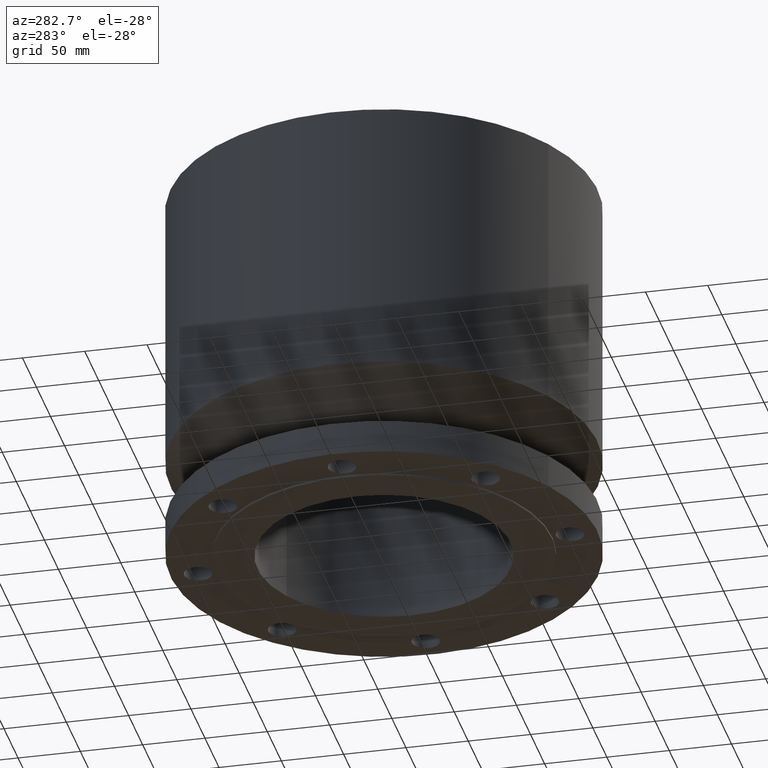
[diagram: clean part render]
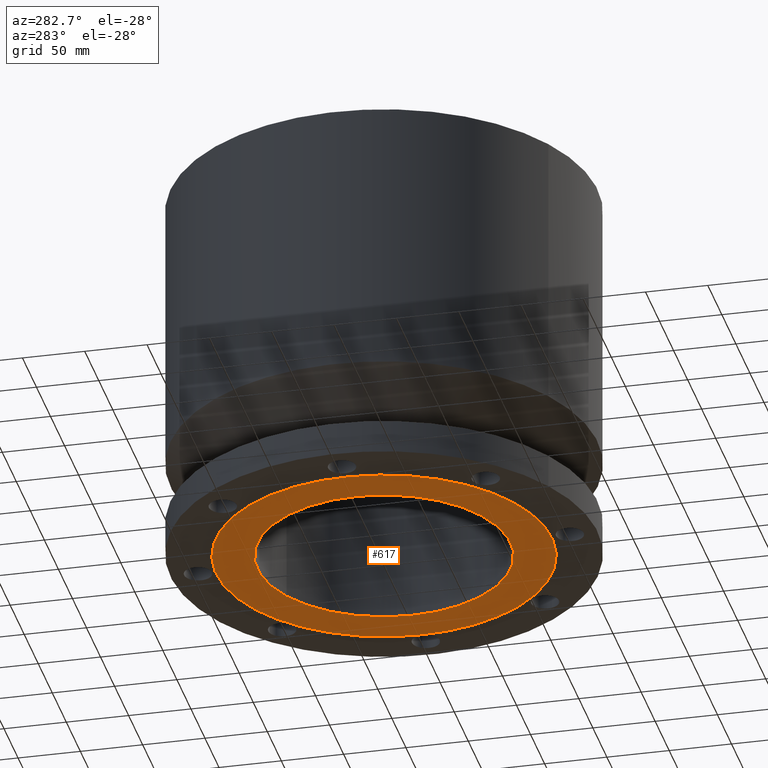
[diagram: same view with one face highlighted and labeled with its STEP entity id]
A machine part, auxiliary view. The second image highlights one B-rep face of the part: STEP entity #617.
In plain terms, the highlighted planar face has unit normal (0, 0, -1).
Its self-contained STEP definition (entity closure, byte-faithful):
#561=AXIS2_PLACEMENT_3D('Circle Axis2P3D',#559,#560,$) ;
#580=AXIS2_PLACEMENT_3D('Circle Axis2P3D',#578,#579,$) ;
#593=AXIS2_PLACEMENT_3D('Plane Axis2P3D',#590,#591,#592) ;
#597=AXIS2_PLACEMENT_3D('Circle Axis2P3D',#595,#596,$) ;
#606=AXIS2_PLACEMENT_3D('Circle Axis2P3D',#604,#605,$) ;
#556=CARTESIAN_POINT('Vertex',(1.91770215442,3.51033024758,-0.0625000000003)) ;
#559=CARTESIAN_POINT('Axis2P3D Location',(0.,0.,-0.0625000000003)) ;
#563=CARTESIAN_POINT('Vertex',(-1.91770215442,-3.51033024758,-0.0625000000003)) ;
#578=CARTESIAN_POINT('Axis2P3D Location',(0.,0.,-0.0625000000003)) ;
#590=CARTESIAN_POINT('Axis2P3D Location',(0.,4.00000000002,-0.0625000000003)) ;
#595=CARTESIAN_POINT('Axis2P3D Location',(0.,0.,-0.0625000000003)) ;
#599=CARTESIAN_POINT('Vertex',(-2.54574961,-4.65996340366,-0.0625000000003)) ;
#601=CARTESIAN_POINT('Vertex',(2.54574961,4.65996340366,-0.0625000000003)) ;
#604=CARTESIAN_POINT('Axis2P3D Location',(0.,0.,-0.0625000000003)) ;
#560=DIRECTION('Axis2P3D Direction',(0.,0.,-0.0393700787402)) ;
#579=DIRECTION('Axis2P3D Direction',(0.,0.,-0.0393700787402)) ;
#591=DIRECTION('Axis2P3D Direction',(0.,0.,-0.0393700787402)) ;
#592=DIRECTION('Axis2P3D XDirection',(0.0393700787402,0.,0.)) ;
#596=DIRECTION('Axis2P3D Direction',(0.,0.,-0.0393700787402)) ;
#605=DIRECTION('Axis2P3D Direction',(0.,0.,-0.0393700787402)) ;
#610=ORIENTED_EDGE('',*,*,#603,.T.) ;
#611=ORIENTED_EDGE('',*,*,#608,.T.) ;
#614=ORIENTED_EDGE('',*,*,#565,.F.) ;
#615=ORIENTED_EDGE('',*,*,#582,.F.) ;
#616=FACE_BOUND('',#613,.T.) ;
#617=ADVANCED_FACE('PartBody',(#612,#616),#594,.T.) ;
#562=CIRCLE('generated circle',#561,4.00000000002) ;
#581=CIRCLE('generated circle',#580,4.00000000002) ;
#598=CIRCLE('generated circle',#597,5.31000000002) ;
#607=CIRCLE('generated circle',#606,5.31000000002) ;
#565=EDGE_CURVE('',#557,#564,#562,.T.) ;
#582=EDGE_CURVE('',#564,#557,#581,.T.) ;
#603=EDGE_CURVE('',#600,#602,#598,.T.) ;
#608=EDGE_CURVE('',#602,#600,#607,.T.) ;
#609=EDGE_LOOP('',(#610,#611)) ;
#613=EDGE_LOOP('',(#614,#615)) ;
#612=FACE_OUTER_BOUND('',#609,.T.) ;
#594=PLANE('',#593) ;
#557=VERTEX_POINT('',#556) ;
#564=VERTEX_POINT('',#563) ;
#600=VERTEX_POINT('',#599) ;
#602=VERTEX_POINT('',#601) ;